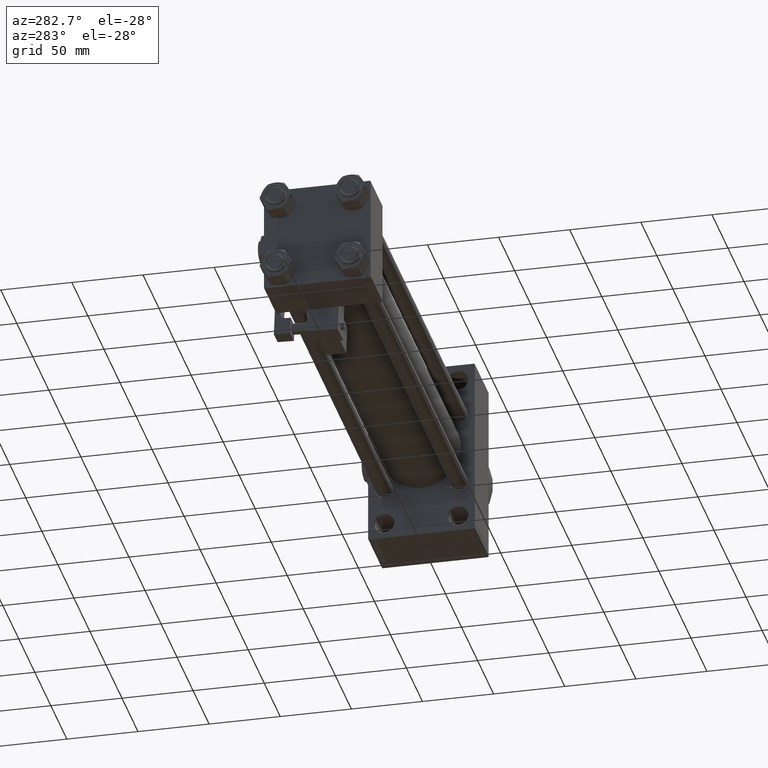
[diagram: clean part render]
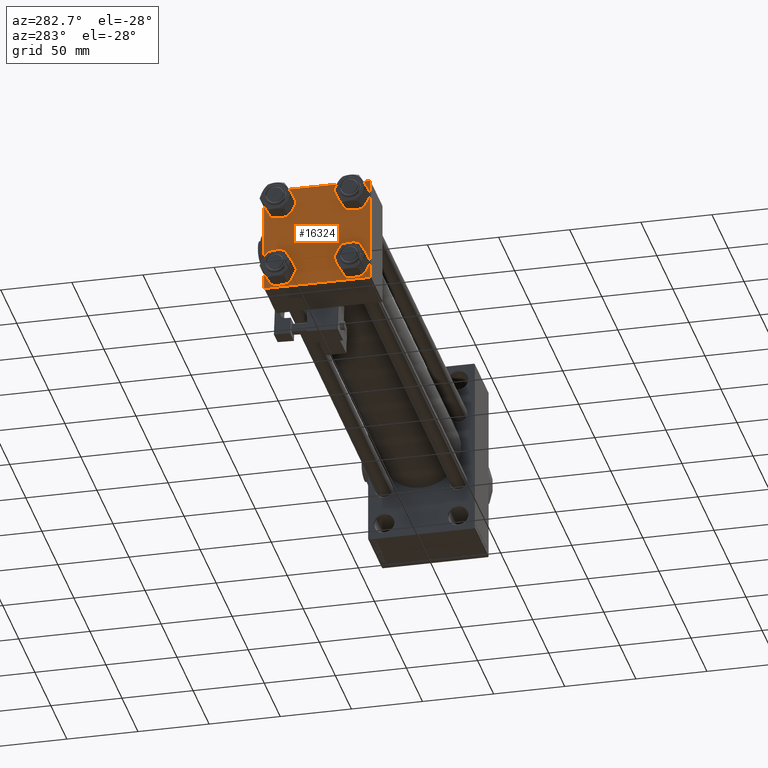
[diagram: same view with one face highlighted and labeled with its STEP entity id]
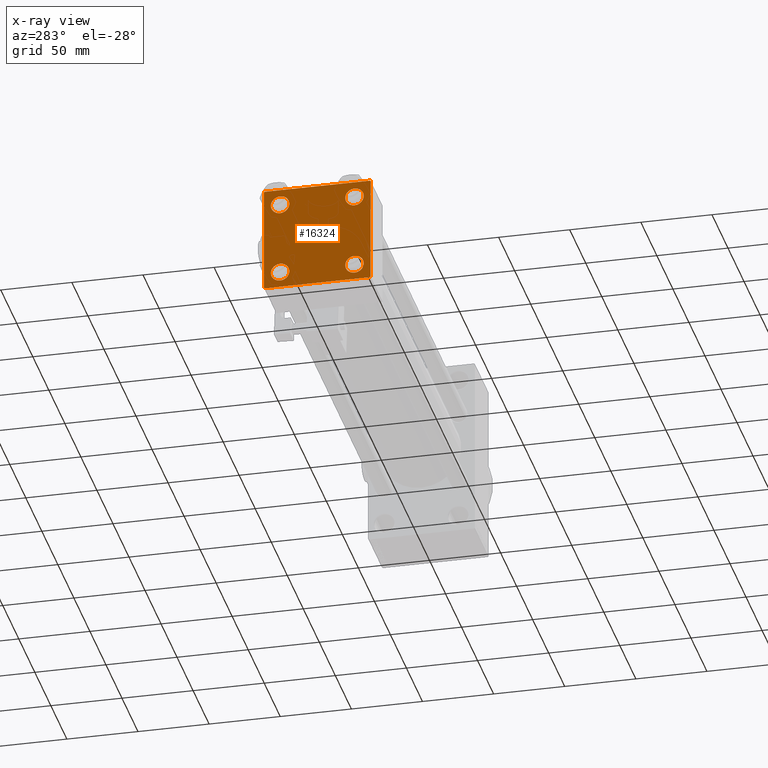
[diagram: x-ray of the same camera — body ghosted, the highlighted face saturated]
A machine part, auxiliary view. The second image highlights one B-rep face of the part: STEP entity #16324.
The next image is the same camera in x-ray: the body ghosted, the highlighted face saturated — about 0% of this face is hidden behind the body in this view.
In plain terms, the highlighted planar face has unit normal (-1, 0, 0).
Its self-contained STEP definition (entity closure, byte-faithful):
#121 = DIRECTION ( 'NONE',  ( 0.000000000000000000, 0.000000000000000000, 1.000000000000000000 ) ) ;
#171 = ORIENTED_EDGE ( 'NONE', *, *, #52970, .T. ) ;
#570 = LINE ( 'NONE', #42439, #29491 ) ;
#906 = AXIS2_PLACEMENT_3D ( 'NONE', #10259, #34674, #47032 ) ;
#1108 = DIRECTION ( 'NONE',  ( -0.000000000000000000, 0.7071067811865474617, 0.7071067811865474617 ) ) ;
#1377 = CARTESIAN_POINT ( 'NONE',  ( 0.000000000000000000, -26.14999999999999147, -32.65000000000002700 ) ) ;
#1763 = CIRCLE ( 'NONE', #8608, 6.500000000000015987 ) ;
#1894 = ORIENTED_EDGE ( 'NONE', *, *, #17161, .T. ) ;
#2194 = PLANE ( 'NONE',  #906 ) ;
#2500 = CARTESIAN_POINT ( 'NONE',  ( 0.000000000000000000, -26.14999999999999147, -26.15000000000000924 ) ) ;
#2686 = ORIENTED_EDGE ( 'NONE', *, *, #29347, .T. ) ;
#2711 = CARTESIAN_POINT ( 'NONE',  ( 0.000000000000000000, 26.14999999999999858, 26.15000000000000213 ) ) ;
#2847 = EDGE_LOOP ( 'NONE', ( #1894, #31396 ) ) ;
#3019 = LINE ( 'NONE', #19405, #42400 ) ;
#3404 = VECTOR ( 'NONE', #36505, 1000.000000000000000 ) ;
#3583 = CARTESIAN_POINT ( 'NONE',  ( 0.000000000000000000, -37.50000000000000711, 36.99999999999999289 ) ) ;
#4829 = VERTEX_POINT ( 'NONE', #14472 ) ;
#4904 = CIRCLE ( 'NONE', #39200, 6.500000000000023093 ) ;
#5071 = ORIENTED_EDGE ( 'NONE', *, *, #47559, .T. ) ;
#5182 = EDGE_CURVE ( 'NONE', #31610, #23300, #20925, .T. ) ;
#5213 = EDGE_LOOP ( 'NONE', ( #37965, #15207, #8494, #171, #14150, #5071, #32282, #37411 ) ) ;
#5428 = FACE_BOUND ( 'NONE', #2847, .T. ) ;
#5777 = AXIS2_PLACEMENT_3D ( 'NONE', #19410, #48115, #11350 ) ;
#5883 = VERTEX_POINT ( 'NONE', #19758 ) ;
#6416 = VERTEX_POINT ( 'NONE', #34399 ) ;
#6714 = EDGE_CURVE ( 'NONE', #4829, #43478, #4904, .T. ) ;
#6872 = EDGE_CURVE ( 'NONE', #46068, #48944, #27261, .T. ) ;
#7730 = EDGE_CURVE ( 'NONE', #50646, #20859, #21223, .T. ) ;
#8005 = DIRECTION ( 'NONE',  ( 1.000000000000000000, -0.000000000000000000, 0.000000000000000000 ) ) ;
#8430 = CIRCLE ( 'NONE', #38430, 6.500000000000015987 ) ;
#8494 = ORIENTED_EDGE ( 'NONE', *, *, #45084, .T. ) ;
#8608 = AXIS2_PLACEMENT_3D ( 'NONE', #20795, #24794, #24526 ) ;
#9249 = AXIS2_PLACEMENT_3D ( 'NONE', #37156, #44952, #121 ) ;
#9708 = CARTESIAN_POINT ( 'NONE',  ( 0.000000000000000000, 37.49999999999999289, 37.50000000000000000 ) ) ;
#9719 = FACE_BOUND ( 'NONE', #23177, .T. ) ;
#9990 = FACE_OUTER_BOUND ( 'NONE', #5213, .T. ) ;
#10259 = CARTESIAN_POINT ( 'NONE',  ( 0.000000000000000000, 0.000000000000000000, 0.000000000000000000 ) ) ;
#10530 = FACE_BOUND ( 'NONE', #36746, .T. ) ;
#11296 = CARTESIAN_POINT ( 'NONE',  ( 0.000000000000000000, 37.24999999999999289, 37.24999999999999289 ) ) ;
#11350 = DIRECTION ( 'NONE',  ( 0.000000000000000000, 0.000000000000000000, 1.000000000000000000 ) ) ;
#11352 = DIRECTION ( 'NONE',  ( 0.000000000000000000, 0.000000000000000000, 1.000000000000000000 ) ) ;
#11560 = DIRECTION ( 'NONE',  ( 0.000000000000000000, 0.7071067811865474617, -0.7071067811865474617 ) ) ;
#11563 = DIRECTION ( 'NONE',  ( 1.000000000000000000, -0.000000000000000000, 0.000000000000000000 ) ) ;
#11967 = EDGE_CURVE ( 'NONE', #6416, #42338, #31716, .T. ) ;
#12296 = CARTESIAN_POINT ( 'NONE',  ( 0.000000000000000000, -26.14999999999999147, -26.15000000000000924 ) ) ;
#12307 = EDGE_CURVE ( 'NONE', #23190, #26470, #49130, .T. ) ;
#12834 = AXIS2_PLACEMENT_3D ( 'NONE', #29312, #20747, #37625 ) ;
#13139 = DIRECTION ( 'NONE',  ( -0.000000000000000000, -0.7071067811865474617, -0.7071067811865474617 ) ) ;
#13398 = CARTESIAN_POINT ( 'NONE',  ( 0.000000000000000000, 36.99999999999999289, 37.50000000000000000 ) ) ;
#13581 = DIRECTION ( 'NONE',  ( 0.000000000000000000, -1.000000000000000000, -9.251858538542972814E-17 ) ) ;
#14032 = VECTOR ( 'NONE', #11560, 1000.000000000000114 ) ;
#14150 = ORIENTED_EDGE ( 'NONE', *, *, #12307, .F. ) ;
#14472 = CARTESIAN_POINT ( 'NONE',  ( 0.000000000000000000, 26.14999999999999858, 19.64999999999998437 ) ) ;
#15127 = DIRECTION ( 'NONE',  ( 1.000000000000000000, -0.000000000000000000, 0.000000000000000000 ) ) ;
#15207 = ORIENTED_EDGE ( 'NONE', *, *, #5182, .T. ) ;
#15539 = CIRCLE ( 'NONE', #16396, 6.500000000000023093 ) ;
#16122 = VERTEX_POINT ( 'NONE', #36551 ) ;
#16318 = DIRECTION ( 'NONE',  ( 0.000000000000000000, 0.000000000000000000, 1.000000000000000000 ) ) ;
#16324 = ADVANCED_FACE ( 'NONE', ( #10530, #18851, #5428, #9719, #9990 ), #2194, .T. ) ;
#16396 = AXIS2_PLACEMENT_3D ( 'NONE', #2711, #11563, #47808 ) ;
#17161 = EDGE_CURVE ( 'NONE', #48944, #46068, #1763, .T. ) ;
#17343 = ORIENTED_EDGE ( 'NONE', *, *, #32719, .T. ) ;
#18851 = FACE_BOUND ( 'NONE', #27170, .T. ) ;
#19148 = DIRECTION ( 'NONE',  ( 0.000000000000000000, -0.7071067811865524577, 0.7071067811865426878 ) ) ;
#19405 = CARTESIAN_POINT ( 'NONE',  ( 0.000000000000000000, -37.24999999999975842, -37.25000000000027001 ) ) ;
#19410 = CARTESIAN_POINT ( 'NONE',  ( 0.000000000000000000, -26.14999999999999147, 26.15000000000000924 ) ) ;
#19577 = ORIENTED_EDGE ( 'NONE', *, *, #7730, .T. ) ;
#19758 = CARTESIAN_POINT ( 'NONE',  ( 0.000000000000000000, -37.00000000000002132, -37.50000000000000711 ) ) ;
#19765 = DIRECTION ( 'NONE',  ( 0.000000000000000000, 0.000000000000000000, 1.000000000000000000 ) ) ;
#20360 = CARTESIAN_POINT ( 'NONE',  ( 0.000000000000000000, 26.14999999999999858, 32.65000000000002700 ) ) ;
#20747 = DIRECTION ( 'NONE',  ( 1.000000000000000000, -0.000000000000000000, 0.000000000000000000 ) ) ;
#20795 = CARTESIAN_POINT ( 'NONE',  ( 0.000000000000000000, 26.14999999999999858, -26.15000000000000213 ) ) ;
#20833 = VECTOR ( 'NONE', #13581, 1000.000000000000000 ) ;
#20859 = VERTEX_POINT ( 'NONE', #24701 ) ;
#20925 = LINE ( 'NONE', #21185, #38279 ) ;
#21086 = CARTESIAN_POINT ( 'NONE',  ( 0.000000000000000000, 37.49999999999999289, -37.50000000000000000 ) ) ;
#21185 = CARTESIAN_POINT ( 'NONE',  ( 0.000000000000000000, 37.24999999999998579, -37.24999999999998579 ) ) ;
#21223 = CIRCLE ( 'NONE', #51258, 6.500000000000015987 ) ;
#21360 = LINE ( 'NONE', #21086, #20833 ) ;
#22012 = EDGE_CURVE ( 'NONE', #49419, #16122, #39461, .T. ) ;
#22049 = DIRECTION ( 'NONE',  ( 0.000000000000000000, -1.000000000000000000, -9.251858538542971581E-17 ) ) ;
#22089 = CARTESIAN_POINT ( 'NONE',  ( 0.000000000000000000, 36.99999999999997868, -37.50000000000000000 ) ) ;
#23177 = EDGE_LOOP ( 'NONE', ( #29267, #25397 ) ) ;
#23190 = VERTEX_POINT ( 'NONE', #3583 ) ;
#23208 = CARTESIAN_POINT ( 'NONE',  ( 0.000000000000000000, 37.49999999999999289, -36.99999999999998579 ) ) ;
#23300 = VERTEX_POINT ( 'NONE', #22089 ) ;
#23571 = ORIENTED_EDGE ( 'NONE', *, *, #11967, .T. ) ;
#24526 = DIRECTION ( 'NONE',  ( 0.000000000000000000, 0.000000000000000000, 1.000000000000000000 ) ) ;
#24701 = CARTESIAN_POINT ( 'NONE',  ( 0.000000000000000000, -26.14999999999999147, -19.64999999999999503 ) ) ;
#24794 = DIRECTION ( 'NONE',  ( 1.000000000000000000, -0.000000000000000000, 0.000000000000000000 ) ) ;
#25397 = ORIENTED_EDGE ( 'NONE', *, *, #6714, .T. ) ;
#26127 = VECTOR ( 'NONE', #48629, 1000.000000000000000 ) ;
#26470 = VERTEX_POINT ( 'NONE', #29986 ) ;
#27170 = EDGE_LOOP ( 'NONE', ( #17343, #19577 ) ) ;
#27261 = CIRCLE ( 'NONE', #9249, 6.500000000000015987 ) ;
#29267 = ORIENTED_EDGE ( 'NONE', *, *, #38252, .T. ) ;
#29312 = CARTESIAN_POINT ( 'NONE',  ( 0.000000000000000000, -26.14999999999999147, 26.15000000000000924 ) ) ;
#29347 = EDGE_CURVE ( 'NONE', #42338, #6416, #52876, .T. ) ;
#29491 = VECTOR ( 'NONE', #1108, 1000.000000000000114 ) ;
#29986 = CARTESIAN_POINT ( 'NONE',  ( 0.000000000000000000, -37.50000000000000000, -37.00000000000003553 ) ) ;
#30364 = LINE ( 'NONE', #9708, #39756 ) ;
#31396 = ORIENTED_EDGE ( 'NONE', *, *, #6872, .T. ) ;
#31610 = VERTEX_POINT ( 'NONE', #23208 ) ;
#31716 = CIRCLE ( 'NONE', #12834, 6.500000000000023093 ) ;
#32217 = CARTESIAN_POINT ( 'NONE',  ( 0.000000000000000000, -26.14999999999999147, 19.64999999999999147 ) ) ;
#32230 = CARTESIAN_POINT ( 'NONE',  ( 0.000000000000000000, 37.49999999999999289, 37.50000000000000000 ) ) ;
#32282 = ORIENTED_EDGE ( 'NONE', *, *, #50705, .F. ) ;
#32570 = CARTESIAN_POINT ( 'NONE',  ( 0.000000000000000000, 26.14999999999999858, -32.65000000000001990 ) ) ;
#32719 = EDGE_CURVE ( 'NONE', #20859, #50646, #8430, .T. ) ;
#34399 = CARTESIAN_POINT ( 'NONE',  ( 0.000000000000000000, -26.14999999999999147, 32.65000000000003411 ) ) ;
#34674 = DIRECTION ( 'NONE',  ( -1.000000000000000000, 0.000000000000000000, -0.000000000000000000 ) ) ;
#36505 = DIRECTION ( 'NONE',  ( 0.000000000000000000, 9.251858538542971581E-17, -1.000000000000000000 ) ) ;
#36551 = CARTESIAN_POINT ( 'NONE',  ( 0.000000000000000000, 37.49999999999999289, 37.00000000000000000 ) ) ;
#36746 = EDGE_LOOP ( 'NONE', ( #23571, #2686 ) ) ;
#36789 = VERTEX_POINT ( 'NONE', #47399 ) ;
#37156 = CARTESIAN_POINT ( 'NONE',  ( 0.000000000000000000, 26.14999999999999858, -26.15000000000000213 ) ) ;
#37411 = ORIENTED_EDGE ( 'NONE', *, *, #22012, .T. ) ;
#37625 = DIRECTION ( 'NONE',  ( 0.000000000000000000, 0.000000000000000000, 1.000000000000000000 ) ) ;
#37965 = ORIENTED_EDGE ( 'NONE', *, *, #48384, .T. ) ;
#38252 = EDGE_CURVE ( 'NONE', #43478, #4829, #15539, .T. ) ;
#38279 = VECTOR ( 'NONE', #13139, 1000.000000000000114 ) ;
#38430 = AXIS2_PLACEMENT_3D ( 'NONE', #2500, #15127, #11352 ) ;
#39200 = AXIS2_PLACEMENT_3D ( 'NONE', #43661, #39621, #19765 ) ;
#39461 = LINE ( 'NONE', #11296, #14032 ) ;
#39621 = DIRECTION ( 'NONE',  ( 1.000000000000000000, -0.000000000000000000, 0.000000000000000000 ) ) ;
#39756 = VECTOR ( 'NONE', #22049, 1000.000000000000000 ) ;
#42338 = VERTEX_POINT ( 'NONE', #32217 ) ;
#42400 = VECTOR ( 'NONE', #19148, 1000.000000000000000 ) ;
#42439 = CARTESIAN_POINT ( 'NONE',  ( -0.000000000000000000, -37.25000000000000000, 37.25000000000000000 ) ) ;
#43478 = VERTEX_POINT ( 'NONE', #20360 ) ;
#43661 = CARTESIAN_POINT ( 'NONE',  ( 0.000000000000000000, 26.14999999999999858, 26.15000000000000213 ) ) ;
#44952 = DIRECTION ( 'NONE',  ( 1.000000000000000000, -0.000000000000000000, 0.000000000000000000 ) ) ;
#45084 = EDGE_CURVE ( 'NONE', #23300, #5883, #21360, .T. ) ;
#45900 = CARTESIAN_POINT ( 'NONE',  ( 0.000000000000000000, -37.50000000000000711, 37.49999999999999289 ) ) ;
#46068 = VERTEX_POINT ( 'NONE', #32570 ) ;
#47032 = DIRECTION ( 'NONE',  ( -0.000000000000000000, 0.000000000000000000, 1.000000000000000000 ) ) ;
#47399 = CARTESIAN_POINT ( 'NONE',  ( 0.000000000000000000, -37.00000000000000711, 37.49999999999999289 ) ) ;
#47559 = EDGE_CURVE ( 'NONE', #23190, #36789, #570, .T. ) ;
#47808 = DIRECTION ( 'NONE',  ( 0.000000000000000000, 0.000000000000000000, 1.000000000000000000 ) ) ;
#48109 = LINE ( 'NONE', #32230, #26127 ) ;
#48115 = DIRECTION ( 'NONE',  ( 1.000000000000000000, -0.000000000000000000, 0.000000000000000000 ) ) ;
#48384 = EDGE_CURVE ( 'NONE', #16122, #31610, #48109, .T. ) ;
#48629 = DIRECTION ( 'NONE',  ( 0.000000000000000000, 0.000000000000000000, -1.000000000000000000 ) ) ;
#48944 = VERTEX_POINT ( 'NONE', #50630 ) ;
#49130 = LINE ( 'NONE', #45900, #3404 ) ;
#49419 = VERTEX_POINT ( 'NONE', #13398 ) ;
#50630 = CARTESIAN_POINT ( 'NONE',  ( 0.000000000000000000, 26.14999999999999858, -19.64999999999998792 ) ) ;
#50646 = VERTEX_POINT ( 'NONE', #1377 ) ;
#50705 = EDGE_CURVE ( 'NONE', #49419, #36789, #30364, .T. ) ;
#51258 = AXIS2_PLACEMENT_3D ( 'NONE', #12296, #8005, #16318 ) ;
#52876 = CIRCLE ( 'NONE', #5777, 6.500000000000023093 ) ;
#52970 = EDGE_CURVE ( 'NONE', #5883, #26470, #3019, .T. ) ;